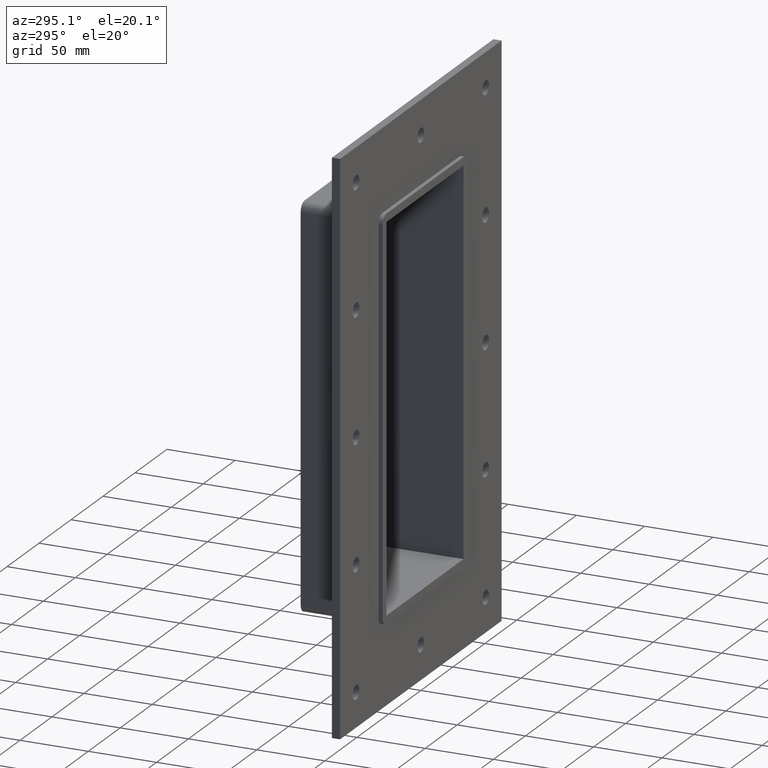
[diagram: clean part render]
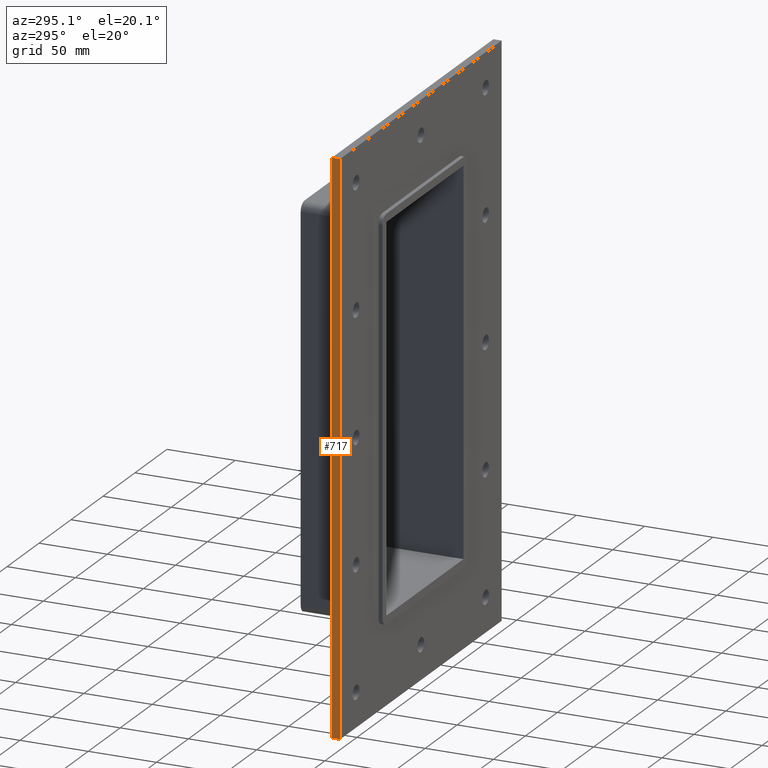
[diagram: same view with one face highlighted and labeled with its STEP entity id]
A machine part, auxiliary view. The second image highlights one B-rep face of the part: STEP entity #717.
In plain terms, the highlighted planar face has unit normal (-1, 0, 0).
Its self-contained STEP definition (entity closure, byte-faithful):
#409=CARTESIAN_POINT('',(-126.24999999999997,6.000000000000001,205.0));
#410=VERTEX_POINT('',#409);
#427=CARTESIAN_POINT('',(-126.24999999999997,6.000000000000001,-205.0));
#428=VERTEX_POINT('',#427);
#435=CARTESIAN_POINT('',(-126.24999999999997,6.000000000000001,-205.0));
#436=DIRECTION('',(0.0,0.0,1.0));
#437=VECTOR('',#436,410.0);
#438=LINE('',#435,#437);
#439=EDGE_CURVE('',#428,#410,#438,.T.);
#555=CARTESIAN_POINT('',(-126.24999999999997,0.0,205.0));
#556=VERTEX_POINT('',#555);
#565=CARTESIAN_POINT('',(-126.24999999999997,0.0,-205.0));
#566=VERTEX_POINT('',#565);
#567=CARTESIAN_POINT('',(-126.24999999999997,0.0,-205.0));
#568=DIRECTION('',(0.0,0.0,1.0));
#569=VECTOR('',#568,410.0);
#570=LINE('',#567,#569);
#571=EDGE_CURVE('',#566,#556,#570,.T.);
#696=CARTESIAN_POINT('',(-126.24999999999997,0.0,-205.0));
#697=DIRECTION('',(-1.0,0.0,0.0));
#698=DIRECTION('',(0.0,0.0,1.0));
#699=AXIS2_PLACEMENT_3D('',#696,#697,#698);
#700=PLANE('',#699);
#701=ORIENTED_EDGE('',*,*,#571,.T.);
#702=CARTESIAN_POINT('',(-126.24999999999997,0.0,205.0));
#703=DIRECTION('',(0.0,1.0,0.0));
#704=VECTOR('',#703,6.000000000000001);
#705=LINE('',#702,#704);
#706=EDGE_CURVE('',#556,#410,#705,.T.);
#707=ORIENTED_EDGE('',*,*,#706,.T.);
#708=ORIENTED_EDGE('',*,*,#439,.F.);
#709=CARTESIAN_POINT('',(-126.24999999999997,0.0,-205.0));
#710=DIRECTION('',(0.0,1.0,0.0));
#711=VECTOR('',#710,6.000000000000001);
#712=LINE('',#709,#711);
#713=EDGE_CURVE('',#566,#428,#712,.T.);
#714=ORIENTED_EDGE('',*,*,#713,.F.);
#715=EDGE_LOOP('',(#701,#707,#708,#714));
#716=FACE_OUTER_BOUND('',#715,.T.);
#717=ADVANCED_FACE('',(#716),#700,.T.);